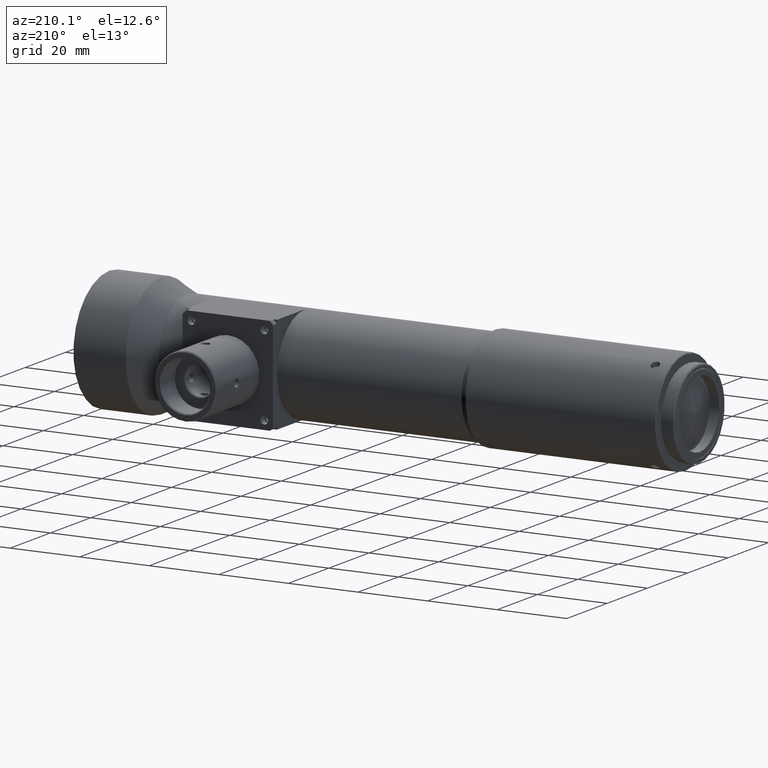
[diagram: clean part render]
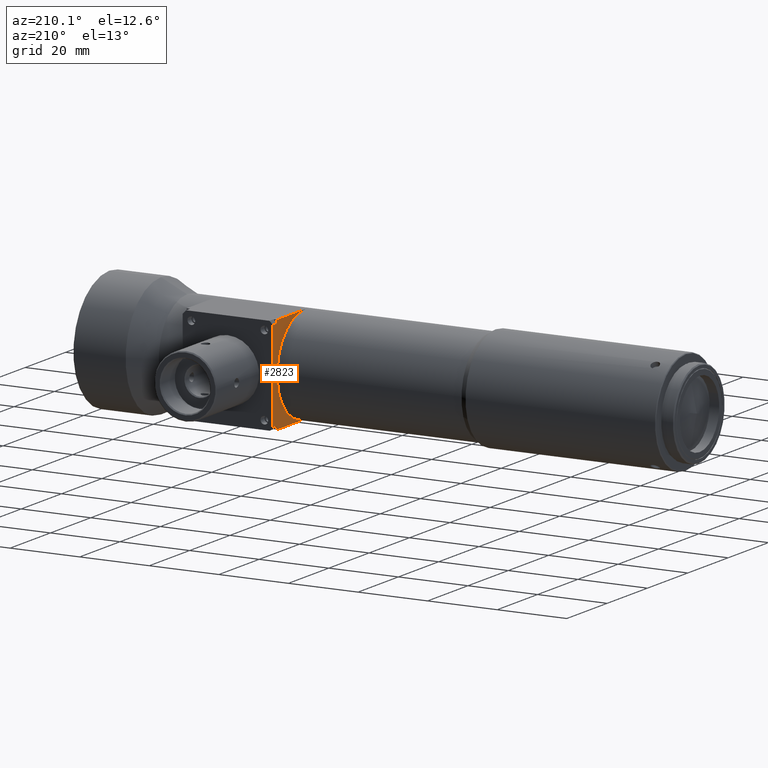
[diagram: same view with one face highlighted and labeled with its STEP entity id]
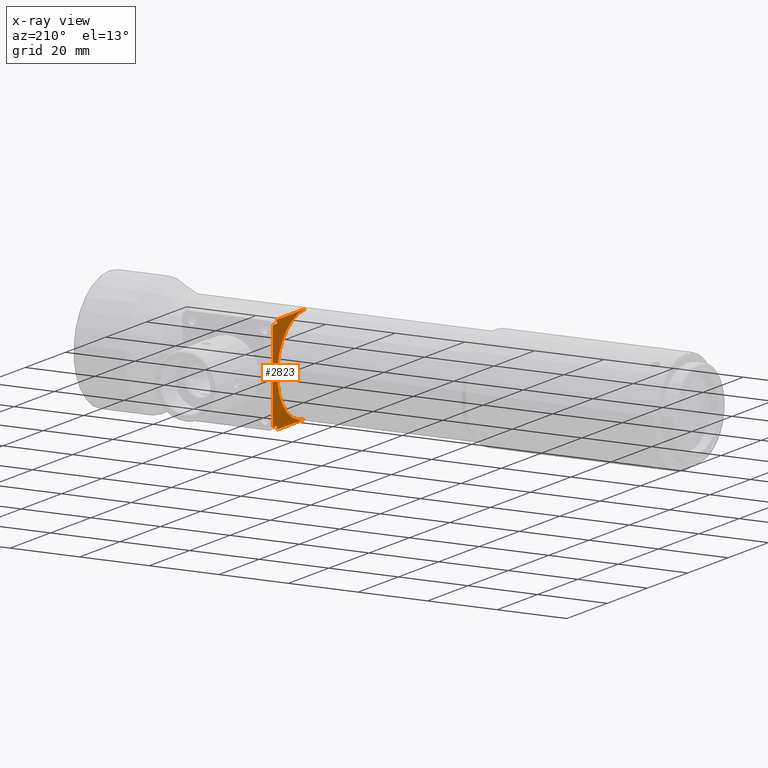
[diagram: x-ray of the same camera — body ghosted, the highlighted face saturated]
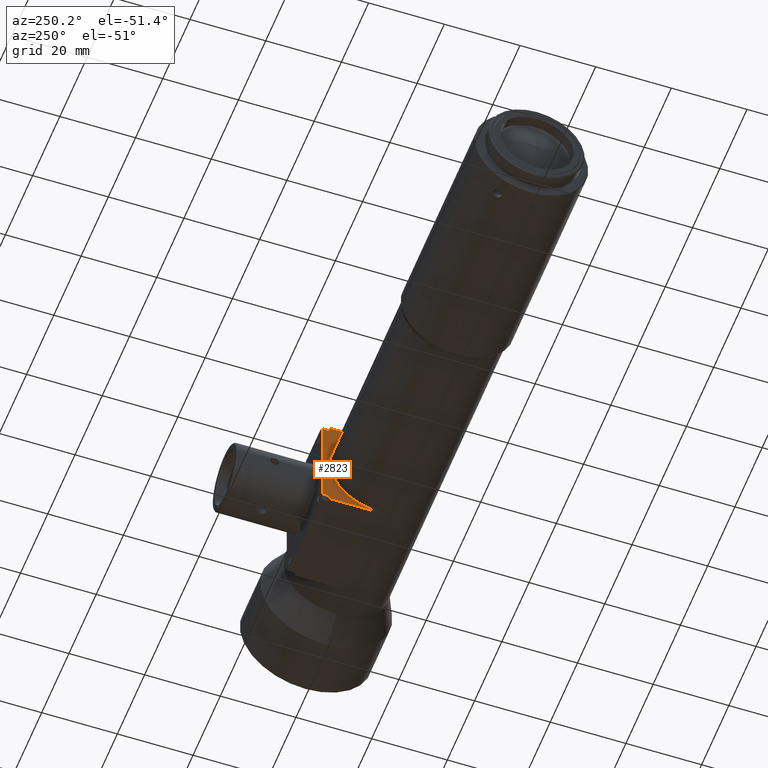
[diagram: same view with one face highlighted and labeled with its STEP entity id]
A machine part, auxiliary view. The second image highlights one B-rep face of the part: STEP entity #2823.
The next image is the same camera in x-ray: the body ghosted, the highlighted face saturated — about 0% of this face is hidden behind the body in this view.
A second angle (auxiliary view) of the same face is appended — the face is thin or edge-on in the first view.
In plain terms, the highlighted planar face has unit normal (1, 0, 0).
Its self-contained STEP definition (entity closure, byte-faithful):
#36 = EDGE_CURVE ( 'NONE', #3993, #4086, #972, .T. ) ;
#40 = EDGE_CURVE ( 'NONE', #3973, #105, #971, .T. ) ;
#47 = EDGE_CURVE ( 'NONE', #4089, #174, #959, .T. ) ;
#105 = VERTEX_POINT ( 'NONE', #1982 ) ;
#112 = FACE_OUTER_BOUND ( 'NONE', #3914, .T. ) ;
#174 = VERTEX_POINT ( 'NONE', #2012 ) ;
#495 = EDGE_CURVE ( 'NONE', #3978, #4089, #1015, .T. ) ;
#503 = EDGE_CURVE ( 'NONE', #105, #3978, #953, .T. ) ;
#528 = EDGE_CURVE ( 'NONE', #3993, #4093, #1134, .T. ) ;
#632 = AXIS2_PLACEMENT_3D ( 'NONE', #3664, #3667, #3671 ) ;
#662 = AXIS2_PLACEMENT_3D ( 'NONE', #3749, #3750, #3751 ) ;
#668 = EDGE_CURVE ( 'NONE', #4093, #3973, #1322, .T. ) ;
#799 = EDGE_CURVE ( 'NONE', #4086, #174, #1231, .T. ) ;
#923 = VECTOR ( 'NONE', #2743, 1000.000000000000000 ) ;
#925 = VECTOR ( 'NONE', #1901, 1000.000000000000000 ) ;
#941 = VECTOR ( 'NONE', #1920, 1000.000000000000000 ) ;
#953 = LINE ( 'NONE', #2726, #1000 ) ;
#959 = LINE ( 'NONE', #2130, #925 ) ;
#971 = LINE ( 'NONE', #1942, #941 ) ;
#972 = LINE ( 'NONE', #2168, #974 ) ;
#974 = VECTOR ( 'NONE', #2162, 1000.000000000000000 ) ;
#1000 = VECTOR ( 'NONE', #2725, 1000.000000000000000 ) ;
#1015 = LINE ( 'NONE', #2752, #923 ) ;
#1052 = VECTOR ( 'NONE', #2716, 1000.000000000000000 ) ;
#1134 = LINE ( 'NONE', #2731, #1052 ) ;
#1231 = CIRCLE ( 'NONE', #662, 14.00000000000000000 ) ;
#1308 = VECTOR ( 'NONE', #2212, 1000.000000000000000 ) ;
#1322 = LINE ( 'NONE', #2215, #1308 ) ;
#1414 = ORIENTED_EDGE ( 'NONE', *, *, #503, .T. ) ;
#1605 = ORIENTED_EDGE ( 'NONE', *, *, #528, .T. ) ;
#1628 = ORIENTED_EDGE ( 'NONE', *, *, #668, .T. ) ;
#1658 = ORIENTED_EDGE ( 'NONE', *, *, #47, .T. ) ;
#1719 = ORIENTED_EDGE ( 'NONE', *, *, #495, .T. ) ;
#1770 = ORIENTED_EDGE ( 'NONE', *, *, #799, .F. ) ;
#1815 = ORIENTED_EDGE ( 'NONE', *, *, #40, .T. ) ;
#1844 = ORIENTED_EDGE ( 'NONE', *, *, #36, .F. ) ;
#1901 = DIRECTION ( 'NONE',  ( 0.0000000000000000000, -1.000000000000000000, -0.0000000000000000000 ) ) ;
#1920 = DIRECTION ( 'NONE',  ( 0.0000000000000000000, -0.0000000000000000000, -1.000000000000000000 ) ) ;
#1942 = CARTESIAN_POINT ( 'NONE',  ( -23.69999999999999900, 16.00000000000000000, 0.0000000000000000000 ) ) ;
#1982 = CARTESIAN_POINT ( 'NONE',  ( -23.69999999999999900, 16.00000000000000000, -12.99999999800000000 ) ) ;
#2012 = CARTESIAN_POINT ( 'NONE',  ( -23.69999999999999900, -2.871447999214636500E-009, -14.00000000000000000 ) ) ;
#2130 = CARTESIAN_POINT ( 'NONE',  ( -23.69999999999999900, 7.000000000000000000, -14.00000000000000000 ) ) ;
#2162 = DIRECTION ( 'NONE',  ( 0.0000000000000000000, -1.000000000000000000, -0.0000000000000000000 ) ) ;
#2168 = CARTESIAN_POINT ( 'NONE',  ( -23.69999999999999900, 6.958000000000000200, 14.00000000000000000 ) ) ;
#2212 = DIRECTION ( 'NONE',  ( 0.0000000000000000000, 1.000000000000000000, 0.0000000000000000000 ) ) ;
#2215 = CARTESIAN_POINT ( 'NONE',  ( -23.69999999999999900, 15.00000000000000000, 13.00000000000000200 ) ) ;
#2716 = DIRECTION ( 'NONE',  ( 0.0000000000000000000, -0.0000000000000000000, -1.000000000000000000 ) ) ;
#2725 = DIRECTION ( 'NONE',  ( 0.0000000000000000000, -1.000000000000000000, -0.0000000000000000000 ) ) ;
#2726 = CARTESIAN_POINT ( 'NONE',  ( -23.69999999999999900, 15.00000000000000000, -13.00000000000000200 ) ) ;
#2731 = CARTESIAN_POINT ( 'NONE',  ( -23.69999999999999900, 14.00000000000000000, 0.0000000000000000000 ) ) ;
#2743 = DIRECTION ( 'NONE',  ( 0.0000000000000000000, -0.0000000000000000000, -1.000000000000000000 ) ) ;
#2752 = CARTESIAN_POINT ( 'NONE',  ( -23.69999999999999900, 14.00000000000000000, 0.0000000000000000000 ) ) ;
#2823 = ADVANCED_FACE ( 'NONE', ( #112 ), #3670, .F. ) ;
#3111 = CARTESIAN_POINT ( 'NONE',  ( -23.69999999999999900, 16.00000000000000000, 12.99999999800000200 ) ) ;
#3121 = CARTESIAN_POINT ( 'NONE',  ( -23.69999999999999900, 14.00000000000000000, -13.00000000000000200 ) ) ;
#3150 = CARTESIAN_POINT ( 'NONE',  ( -23.70000000000000300, 14.00000000000000000, 14.00000000000000000 ) ) ;
#3223 = CARTESIAN_POINT ( 'NONE',  ( -23.69999999700000300, -1.257110798002262500E-009, 14.00000000000000000 ) ) ;
#3278 = CARTESIAN_POINT ( 'NONE',  ( -23.70000000000000300, 14.00000000000000000, -14.00000000000000000 ) ) ;
#3664 = CARTESIAN_POINT ( 'NONE',  ( -23.69999999999999900, -0.08400000000000001900, 14.00000000000000000 ) ) ;
#3667 = DIRECTION ( 'NONE',  ( 1.000000000000000000, 0.0000000000000000000, 0.0000000000000000000 ) ) ;
#3670 = PLANE ( 'NONE',  #632 ) ;
#3671 = DIRECTION ( 'NONE',  ( 0.0000000000000000000, 0.0000000000000000000, -1.000000000000000000 ) ) ;
#3749 = CARTESIAN_POINT ( 'NONE',  ( -23.69999999999999900, -2.204323854208500500E-041, 0.0000000000000000000 ) ) ;
#3750 = DIRECTION ( 'NONE',  ( -1.000000000000000000, 6.195440985631455300E-017, 0.0000000000000000000 ) ) ;
#3751 = DIRECTION ( 'NONE',  ( 0.0000000000000000000, -1.000000000000000000, 0.0000000000000000000 ) ) ;
#3811 = CARTESIAN_POINT ( 'NONE',  ( -23.69999999999999900, 14.00000000000000000, 13.00000000000000200 ) ) ;
#3914 = EDGE_LOOP ( 'NONE', ( #1770, #1844, #1605, #1628, #1815, #1414, #1719, #1658 ) ) ;
#3973 = VERTEX_POINT ( 'NONE', #3111 ) ;
#3978 = VERTEX_POINT ( 'NONE', #3121 ) ;
#3993 = VERTEX_POINT ( 'NONE', #3150 ) ;
#4086 = VERTEX_POINT ( 'NONE', #3223 ) ;
#4089 = VERTEX_POINT ( 'NONE', #3278 ) ;
#4093 = VERTEX_POINT ( 'NONE', #3811 ) ;